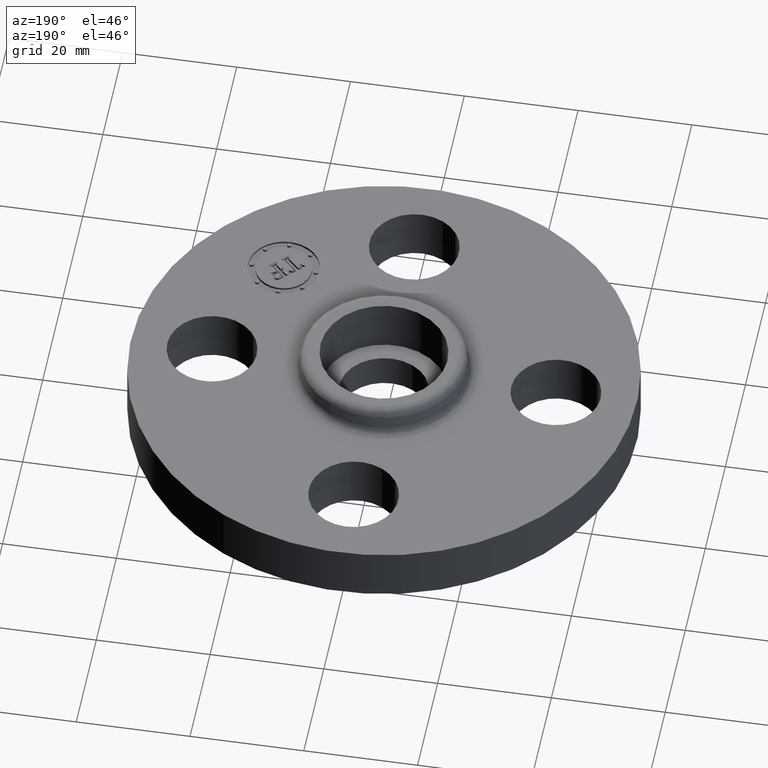
[diagram: clean part render]
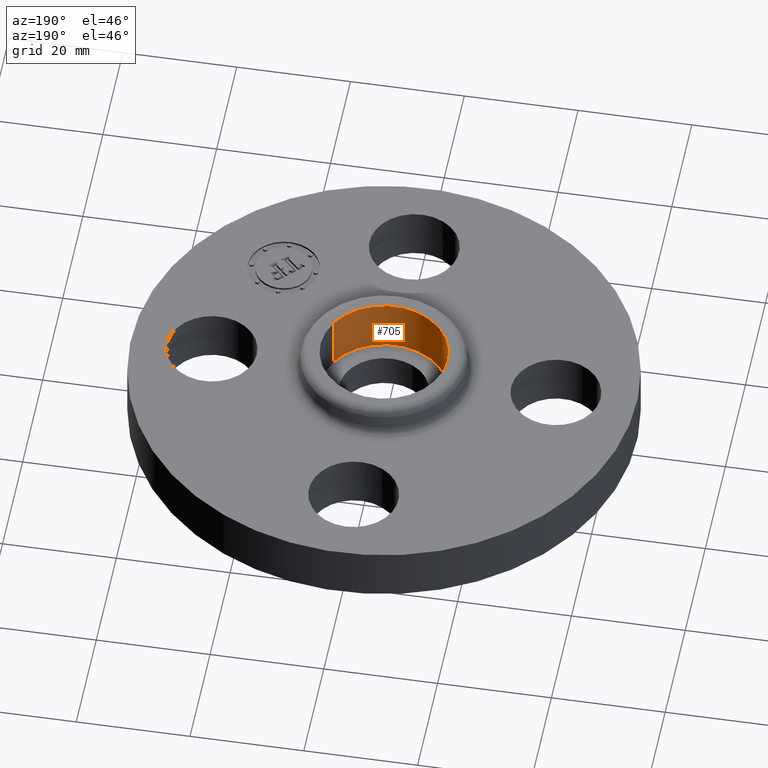
[diagram: same view with one face highlighted and labeled with its STEP entity id]
A machine part, auxiliary view. The second image highlights one B-rep face of the part: STEP entity #705.
In plain terms, the highlighted cylindrical surface (partial cylindrical patch) has radius 11.176 mm, axis along (0, 0, -1).
Its self-contained STEP definition (entity closure, byte-faithful):
#51=AXIS2_PLACEMENT_3D('Circle Axis2P3D',#49,#50,$) ;
#497=AXIS2_PLACEMENT_3D('Circle Axis2P3D',#495,#496,$) ;
#680=AXIS2_PLACEMENT_3D('Cylinder Axis2P3D',#677,#678,#679) ;
#44=CARTESIAN_POINT('Vertex',(-0.386136327233,0.210947236987,0.180000000001)) ;
#46=CARTESIAN_POINT('Vertex',(0.386136327233,-0.210947236987,0.180000000001)) ;
#49=CARTESIAN_POINT('Axis2P3D Location',(1.39870617276E-016,1.04902962957E-016,0.180000000001)) ;
#490=CARTESIAN_POINT('Vertex',(-0.386136327233,0.210947236987,0.560000000002)) ;
#492=CARTESIAN_POINT('Vertex',(0.386136327233,-0.210947236987,0.560000000002)) ;
#495=CARTESIAN_POINT('Axis2P3D Location',(1.57354444435E-016,1.39870617276E-016,0.560000000002)) ;
#677=CARTESIAN_POINT('Axis2P3D Location',(1.39870617276E-016,1.04902962957E-016,0.556062992128)) ;
#682=CARTESIAN_POINT('Line Origine',(-0.386136327233,0.210947236987,0.370000000001)) ;
#687=CARTESIAN_POINT('Line Origine',(0.386136327233,-0.210947236987,0.370000000001)) ;
#50=DIRECTION('Axis2P3D Direction',(0.,0.,-0.0393700787402)) ;
#496=DIRECTION('Axis2P3D Direction',(0.,0.,-0.0393700787402)) ;
#678=DIRECTION('Axis2P3D Direction',(0.,0.,-0.0393700787402)) ;
#679=DIRECTION('Axis2P3D XDirection',(0.0345504945626,-0.0188750212049,0.)) ;
#683=DIRECTION('Vector Direction',(0.,0.,-0.0393700787402)) ;
#688=DIRECTION('Vector Direction',(0.,0.,-0.0393700787402)) ;
#684=VECTOR('Line Direction',#683,0.0393700787402) ;
#689=VECTOR('Line Direction',#688,0.0393700787402) ;
#700=ORIENTED_EDGE('',*,*,#499,.F.) ;
#701=ORIENTED_EDGE('',*,*,#691,.F.) ;
#702=ORIENTED_EDGE('',*,*,#53,.T.) ;
#703=ORIENTED_EDGE('',*,*,#686,.T.) ;
#705=ADVANCED_FACE('PartBody',(#704),#681,.F.) ;
#52=CIRCLE('generated circle',#51,0.440000000002) ;
#498=CIRCLE('generated circle',#497,0.440000000002) ;
#681=CYLINDRICAL_SURFACE('generated cylinder',#680,0.440000000002) ;
#53=EDGE_CURVE('',#47,#45,#52,.T.) ;
#499=EDGE_CURVE('',#493,#491,#498,.T.) ;
#686=EDGE_CURVE('',#45,#491,#685,.F.) ;
#691=EDGE_CURVE('',#47,#493,#690,.F.) ;
#699=EDGE_LOOP('',(#700,#701,#702,#703)) ;
#704=FACE_OUTER_BOUND('',#699,.T.) ;
#685=LINE('Line',#682,#684) ;
#690=LINE('Line',#687,#689) ;
#45=VERTEX_POINT('',#44) ;
#47=VERTEX_POINT('',#46) ;
#491=VERTEX_POINT('',#490) ;
#493=VERTEX_POINT('',#492) ;